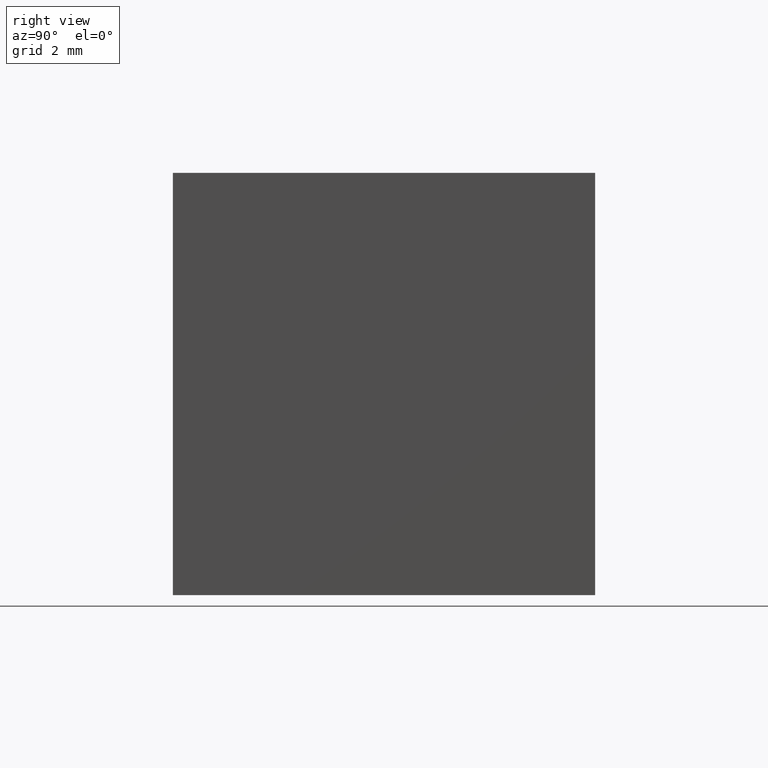
[diagram: clean part render]
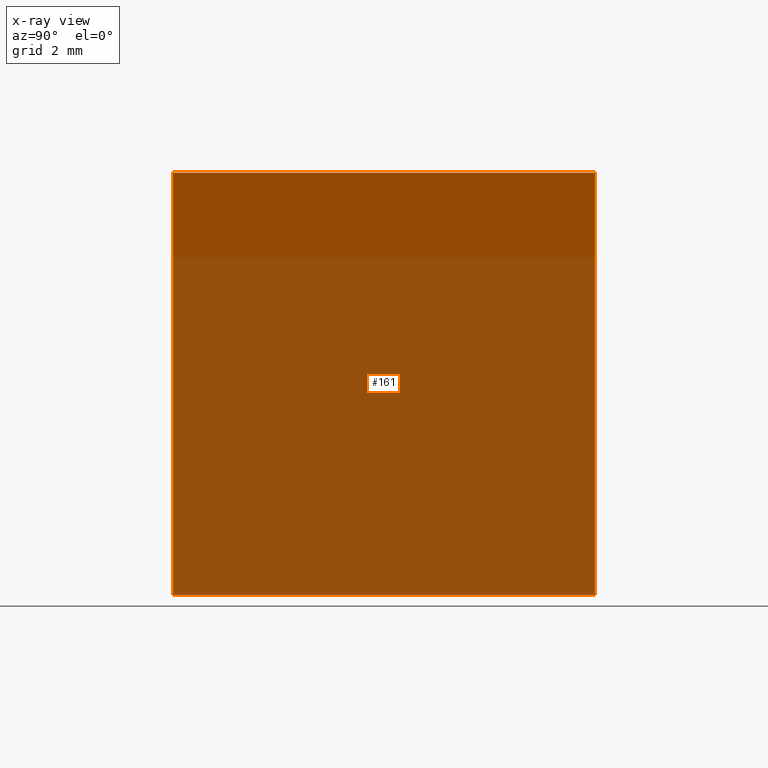
[diagram: x-ray — body ghosted, one internal face saturated and labeled with its STEP entity id]
A machine part, right view, then the same camera in x-ray: the body is ghosted and one INTERNAL B-rep face — a face not visible from any outside direction — is saturated and labeled: STEP entity #161.
In plain terms, the highlighted planar face has unit normal (0.7071, 0, -0.7071).
Its self-contained STEP definition (entity closure, byte-faithful):
#2 = EDGE_LOOP ( 'NONE', ( #248, #24, #113, #265 ) ) ;
#9 = VECTOR ( 'NONE', #281, 1000.000000000000000 ) ;
#24 = ORIENTED_EDGE ( 'NONE', *, *, #194, .F. ) ;
#25 = CARTESIAN_POINT ( 'NONE',  ( -15.00000000000000000, 15.00000000000000000, -14.99999999999999600 ) ) ;
#33 = DIRECTION ( 'NONE',  ( 0.7071067811865476800, 0.0000000000000000000, 0.7071067811865474600 ) ) ;
#51 = CARTESIAN_POINT ( 'NONE',  ( -15.00000000000000000, 0.0000000000000000000, -14.99999999999999600 ) ) ;
#58 = DIRECTION ( 'NONE',  ( 0.7071067811865476800, 0.0000000000000000000, 0.7071067811865474600 ) ) ;
#61 = CARTESIAN_POINT ( 'NONE',  ( 0.0000000000000000000, 15.00000000000000000, 0.0000000000000000000 ) ) ;
#74 = VECTOR ( 'NONE', #131, 1000.000000000000000 ) ;
#101 = EDGE_CURVE ( 'NONE', #232, #163, #147, .T. ) ;
#113 = ORIENTED_EDGE ( 'NONE', *, *, #229, .F. ) ;
#123 = VECTOR ( 'NONE', #33, 1000.000000000000000 ) ;
#124 = DIRECTION ( 'NONE',  ( 0.7071067811865474600, 0.0000000000000000000, -0.7071067811865476800 ) ) ;
#131 = DIRECTION ( 'NONE',  ( -0.0000000000000000000, -1.000000000000000000, -0.0000000000000000000 ) ) ;
#139 = AXIS2_PLACEMENT_3D ( 'NONE', #148, #124, #268 ) ;
#147 = LINE ( 'NONE', #151, #272 ) ;
#148 = CARTESIAN_POINT ( 'NONE',  ( -15.00000000000000000, 15.00000000000000000, -14.99999999999999600 ) ) ;
#151 = CARTESIAN_POINT ( 'NONE',  ( -15.00000000000000000, 0.0000000000000000000, -14.99999999999999600 ) ) ;
#160 = CARTESIAN_POINT ( 'NONE',  ( 0.0000000000000000000, 15.00000000000000000, 0.0000000000000000000 ) ) ;
#161 = ADVANCED_FACE ( 'NONE', ( #190 ), #165, .F. ) ;
#163 = VERTEX_POINT ( 'NONE', #218 ) ;
#165 = PLANE ( 'NONE',  #139 ) ;
#180 = CARTESIAN_POINT ( 'NONE',  ( -15.00000000000000000, 15.00000000000000000, -14.99999999999999600 ) ) ;
#190 = FACE_OUTER_BOUND ( 'NONE', #2, .T. ) ;
#194 = EDGE_CURVE ( 'NONE', #207, #163, #255, .T. ) ;
#195 = LINE ( 'NONE', #180, #74 ) ;
#202 = CARTESIAN_POINT ( 'NONE',  ( -15.00000000000000000, 15.00000000000000000, -14.99999999999999600 ) ) ;
#207 = VERTEX_POINT ( 'NONE', #160 ) ;
#218 = CARTESIAN_POINT ( 'NONE',  ( 0.0000000000000000000, 0.0000000000000000000, 0.0000000000000000000 ) ) ;
#229 = EDGE_CURVE ( 'NONE', #296, #207, #293, .T. ) ;
#232 = VERTEX_POINT ( 'NONE', #51 ) ;
#248 = ORIENTED_EDGE ( 'NONE', *, *, #101, .T. ) ;
#255 = LINE ( 'NONE', #61, #9 ) ;
#264 = EDGE_CURVE ( 'NONE', #296, #232, #195, .T. ) ;
#265 = ORIENTED_EDGE ( 'NONE', *, *, #264, .T. ) ;
#268 = DIRECTION ( 'NONE',  ( -0.7071067811865476800, 0.0000000000000000000, -0.7071067811865474600 ) ) ;
#272 = VECTOR ( 'NONE', #58, 1000.000000000000000 ) ;
#281 = DIRECTION ( 'NONE',  ( -0.0000000000000000000, -1.000000000000000000, -0.0000000000000000000 ) ) ;
#293 = LINE ( 'NONE', #202, #123 ) ;
#296 = VERTEX_POINT ( 'NONE', #25 ) ;